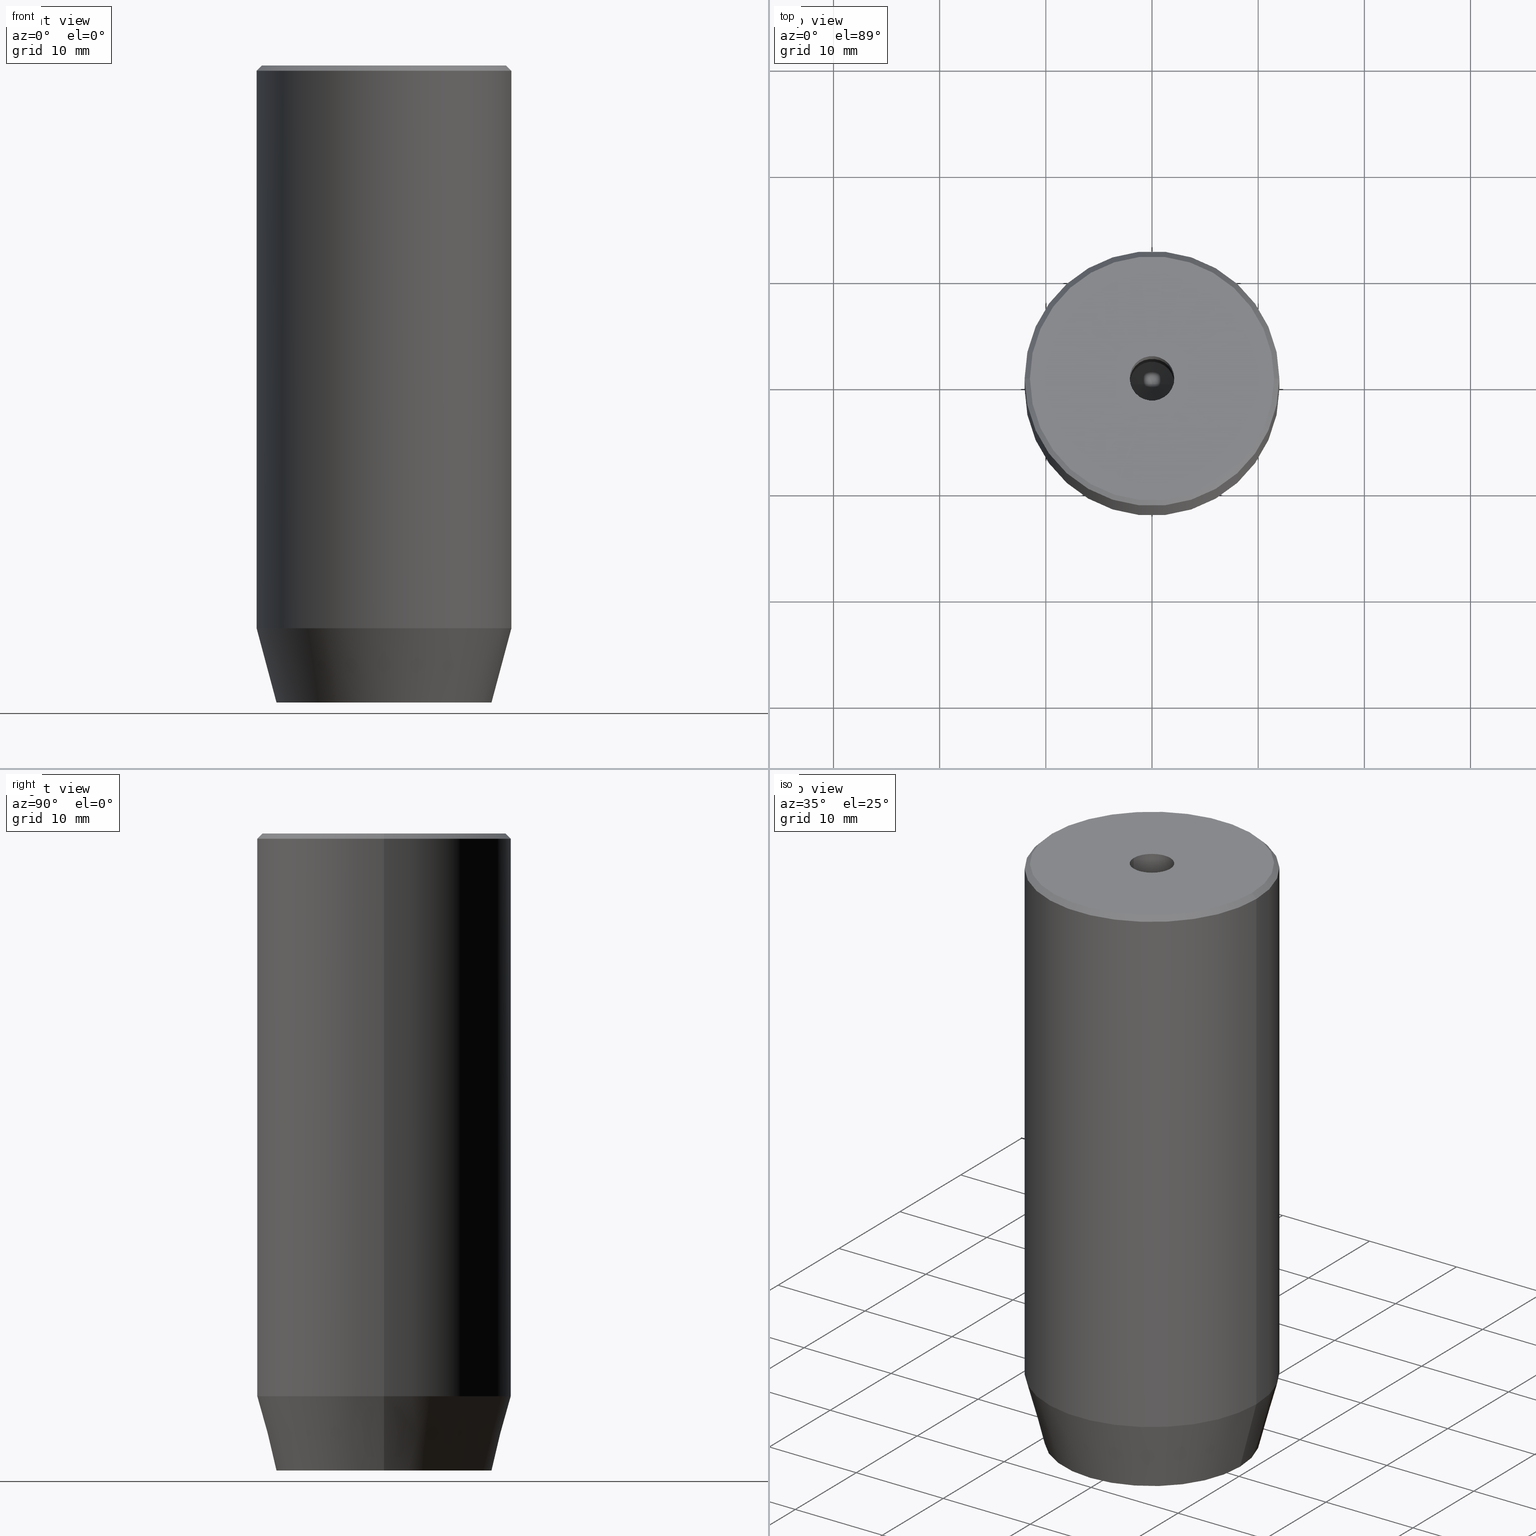
[diagram: canonical four-view strip — front | top / right | iso, engineering-drawing reading convention]
A machine part, canonical four-view strip (front | top / right | iso — engineering-drawing reading convention). The complete STEP part file that produces these views, byte-faithful:
ISO-10303-21;
HEADER;
FILE_DESCRIPTION (( 'STEP AP203' ),
    '1' );
FILE_NAME ('09b5.STEP',
    '2024-01-02T17:17:13',
    ( '' ),
    ( '' ),
    'SwSTEP 2.0',
    'SolidWorks 2019',
    '' );
FILE_SCHEMA (( 'CONFIG_CONTROL_DESIGN' ));
ENDSEC;

DATA;
#1 = DIRECTION ( 'NONE',  ( -0.8660254037844384856, -0.5000000000000002220, 0.000000000000000000 ) ) ;
#2 = CARTESIAN_POINT ( 'NONE',  ( 4.000000000000000000, -2.309401076758502480, -60.00000000000000000 ) ) ;
#3 = EDGE_CURVE ( 'NONE', #538, #533, #529, .T. ) ;
#4 = LINE ( 'NONE', #508, #546 ) ;
#5 = ADVANCED_FACE ( 'NONE', ( #492 ), #170, .F. ) ;
#6 = CONICAL_SURFACE ( 'NONE', #67, 11.49999999999998757, 0.7853981633974482790 ) ;
#7 = CARTESIAN_POINT ( 'NONE',  ( 4.000000000000000000, 2.309401076758503368, -57.20000000000000284 ) ) ;
#8 = CARTESIAN_POINT ( 'NONE',  ( 2.000000000000000444, 3.464101615137754386, -60.00000000000000000 ) ) ;
#9 = PERSON_AND_ORGANIZATION_ROLE ( 'creator' ) ;
#10 = ORIENTED_EDGE ( 'NONE', *, *, #476, .T. ) ;
#11 = CARTESIAN_POINT ( 'NONE',  ( -2.000000000000000888, -3.464101615137754386, -57.20000000000000284 ) ) ;
#12 = UNCERTAINTY_MEASURE_WITH_UNIT (LENGTH_MEASURE( 1.000000000000000082E-05 ), #350, 'distance_accuracy_value', 'NONE');
#13 = AXIS2_PLACEMENT_3D ( 'NONE', #244, #20, #436 ) ;
#14 = VECTOR ( 'NONE', #434, 1000.000000000000000 ) ;
#15 = DIRECTION ( 'NONE',  ( 1.000000000000000000, 0.000000000000000000, 0.000000000000000000 ) ) ;
#16 = CC_DESIGN_APPROVAL ( #28, ( #47 ) ) ;
#17 = EDGE_CURVE ( 'NONE', #249, #156, #411, .T. ) ;
#18 = CARTESIAN_POINT ( 'NONE',  ( 0.000000000000000000, 0.000000000000000000, -30.00000000000000000 ) ) ;
#19 = EDGE_LOOP ( 'NONE', ( #66, #328, #248, #404 ) ) ;
#20 = DIRECTION ( 'NONE',  ( -0.000000000000000000, -0.000000000000000000, 1.000000000000000000 ) ) ;
#21 = EDGE_CURVE ( 'NONE', #36, #265, #581, .T. ) ;
#22 = CIRCLE ( 'NONE', #505, 2.099999999999998757 ) ;
#23 = FACE_OUTER_BOUND ( 'NONE', #19, .T. ) ;
#24 = VECTOR ( 'NONE', #527, 1000.000000000000000 ) ;
#25 = ORIENTED_EDGE ( 'NONE', *, *, #510, .T. ) ;
#26 = CARTESIAN_POINT ( 'NONE',  ( 4.336808689942017736E-16, -4.618802153517006737, -60.00000000000000000 ) ) ;
#27 = CARTESIAN_POINT ( 'NONE',  ( 0.000000000000000000, 0.000000000000000000, -30.00000000000000000 ) ) ;
#28 = APPROVAL ( #293, 'NEUR�EN�' ) ;
#29 = VECTOR ( 'NONE', #416, 1000.000000000000000 ) ;
#30 = CARTESIAN_POINT ( 'NONE',  ( -12.00000000000000000, 1.469576158976823947E-15, -53.00000000000000000 ) ) ;
#31 = ORIENTED_EDGE ( 'NONE', *, *, #510, .F. ) ;
#32 = COORDINATED_UNIVERSAL_TIME_OFFSET ( 1, 0, .AHEAD. ) ;
#33 = DIRECTION ( 'NONE',  ( 1.000000000000000000, 0.000000000000000000, 0.000000000000000000 ) ) ;
#34 = COORDINATED_UNIVERSAL_TIME_OFFSET ( 1, 0, .AHEAD. ) ;
#35 = CIRCLE ( 'NONE', #228, 11.49999999999998757 ) ;
#36 = VERTEX_POINT ( 'NONE', #441 ) ;
#37 = EDGE_LOOP ( 'NONE', ( #125, #99, #431, #59 ) ) ;
#38 = CYLINDRICAL_SURFACE ( 'NONE', #211, 12.00000000000000000 ) ;
#39 = EDGE_LOOP ( 'NONE', ( #75, #400, #60, #289, #473, #61 ) ) ;
#40 = EDGE_LOOP ( 'NONE', ( #432, #571 ) ) ;
#41 = ORIENTED_EDGE ( 'NONE', *, *, #167, .T. ) ;
#42 = APPROVAL_ROLE ( '' ) ;
#43 = CARTESIAN_POINT ( 'NONE',  ( 12.00000000000000000, 0.000000000000000000, 0.000000000000000000 ) ) ;
#44 = CIRCLE ( 'NONE', #385, 2.099999999999998757 ) ;
#45 = ORIENTED_EDGE ( 'NONE', *, *, #168, .T. ) ;
#46 = CARTESIAN_POINT ( 'NONE',  ( 2.000000000000000888, -3.464101615137754386, -57.20000000000000284 ) ) ;
#47 = PRODUCT_DEFINITION ( 'NEZN�M�', '', #464, #302 ) ;
#48 = EDGE_CURVE ( 'NONE', #56, #389, #281, .T. ) ;
#49 = DIRECTION ( 'NONE',  ( 0.8660254037844385966, -0.5000000000000001110, 0.000000000000000000 ) ) ;
#50 = DIRECTION ( 'NONE',  ( 1.000000000000000000, 0.000000000000000000, 0.000000000000000000 ) ) ;
#51 = FACE_OUTER_BOUND ( 'NONE', #232, .T. ) ;
#52 = FACE_OUTER_BOUND ( 'NONE', #376, .T. ) ;
#53 = CONICAL_SURFACE ( 'NONE', #396, 2.099999999999994760, 1.029744258676652535 ) ;
#54 = EDGE_CURVE ( 'NONE', #533, #262, #467, .T. ) ;
#55 = DIRECTION ( 'NONE',  ( -0.000000000000000000, -0.000000000000000000, 1.000000000000000000 ) ) ;
#56 = VERTEX_POINT ( 'NONE', #271 ) ;
#57 = AXIS2_PLACEMENT_3D ( 'NONE', #563, #107, #472 ) ;
#58 = DIRECTION ( 'NONE',  ( 1.000000000000000000, 0.000000000000000000, 0.000000000000000000 ) ) ;
#59 = ORIENTED_EDGE ( 'NONE', *, *, #17, .T. ) ;
#60 = ORIENTED_EDGE ( 'NONE', *, *, #210, .F. ) ;
#61 = ORIENTED_EDGE ( 'NONE', *, *, #130, .F. ) ;
#62 = CYLINDRICAL_SURFACE ( 'NONE', #13, 2.099999999999996980 ) ;
#63 = EDGE_LOOP ( 'NONE', ( #526, #427, #146, #71 ) ) ;
#64 = DIRECTION ( 'NONE',  ( 0.5000000000000001110, 0.8660254037844385966, -0.000000000000000000 ) ) ;
#65 = COORDINATED_UNIVERSAL_TIME_OFFSET ( 1, 0, .AHEAD. ) ;
#66 = ORIENTED_EDGE ( 'NONE', *, *, #410, .F. ) ;
#67 = AXIS2_PLACEMENT_3D ( 'NONE', #158, #344, #291 ) ;
#68 = CARTESIAN_POINT ( 'NONE',  ( 0.000000000000000000, 0.000000000000000000, 0.000000000000000000 ) ) ;
#69 = ORIENTED_EDGE ( 'NONE', *, *, #236, .F. ) ;
#70 = DIRECTION ( 'NONE',  ( 1.000000000000000000, 0.000000000000000000, 0.000000000000000000 ) ) ;
#71 = ORIENTED_EDGE ( 'NONE', *, *, #562, .T. ) ;
#72 = ADVANCED_FACE ( 'NONE', ( #584 ), #407, .F. ) ;
#73 = CARTESIAN_POINT ( 'NONE',  ( -4.000000000000000000, -2.309401076758503368, -57.20000000000000284 ) ) ;
#74 = PERSON_AND_ORGANIZATION_ROLE ( 'creator' ) ;
#75 = ORIENTED_EDGE ( 'NONE', *, *, #429, .F. ) ;
#76 = CARTESIAN_POINT ( 'NONE',  ( -4.000000000000000000, 0.000000000000000000, -57.20000000000000284 ) ) ;
#77 = AXIS2_PLACEMENT_3D ( 'NONE', #386, #203, #58 ) ;
#78 = CARTESIAN_POINT ( 'NONE',  ( -2.000000000000000000, 3.464101615137754830, -57.20000000000000284 ) ) ;
#79 = AXIS2_PLACEMENT_3D ( 'NONE', #446, #484, #355 ) ;
#80 = APPROVAL_DATE_TIME ( #126, #373 ) ;
#81 = SECURITY_CLASSIFICATION ( '', '', #164 ) ;
#82 = CC_DESIGN_DATE_AND_TIME_ASSIGNMENT ( #519, #406, ( #81 ) ) ;
#83 = FACE_OUTER_BOUND ( 'NONE', #397, .T. ) ;
#84 = ORIENTED_EDGE ( 'NONE', *, *, #516, .T. ) ;
#85 = ORIENTED_EDGE ( 'NONE', *, *, #403, .F. ) ;
#86 = CARTESIAN_POINT ( 'NONE',  ( 0.000000000000000000, 10.12435565298213724, -60.00000000000000000 ) ) ;
#87 = CARTESIAN_POINT ( 'NONE',  ( -2.099999999999994760, 2.571758278209435054E-16, -30.00000000000000000 ) ) ;
#88 = AXIS2_PLACEMENT_3D ( 'NONE', #212, #535, #348 ) ;
#89 = EDGE_CURVE ( 'NONE', #520, #265, #453, .T. ) ;
#90 = ORIENTED_EDGE ( 'NONE', *, *, #48, .T. ) ;
#91 = ADVANCED_FACE ( 'NONE', ( #282 ), #53, .F. ) ;
#92 = DATE_TIME_ROLE ( 'creation_date' ) ;
#93 = DIRECTION ( 'NONE',  ( 0.000000000000000000, 1.000000000000000000, 0.000000000000000000 ) ) ;
#94 = CARTESIAN_POINT ( 'NONE',  ( 4.000000000000000000, 2.309401076758503368, -60.00000000000000000 ) ) ;
#95 = AXIS2_PLACEMENT_3D ( 'NONE', #27, #268, #317 ) ;
#96 = VECTOR ( 'NONE', #278, 1000.000000000000000 ) ;
#97 = LINE ( 'NONE', #187, #144 ) ;
#98 = VECTOR ( 'NONE', #362, 1000.000000000000114 ) ;
#99 = ORIENTED_EDGE ( 'NONE', *, *, #129, .F. ) ;
#100 = CC_DESIGN_PERSON_AND_ORGANIZATION_ASSIGNMENT ( #197, #108, ( #464 ) ) ;
#101 = CARTESIAN_POINT ( 'NONE',  ( 2.000000000000000444, 3.464101615137754386, -57.20000000000000284 ) ) ;
#102 = ORIENTED_EDGE ( 'NONE', *, *, #564, .F. ) ;
#103 = APPROVAL_PERSON_ORGANIZATION ( #323, #408, #227 ) ;
#104 = CARTESIAN_POINT ( 'NONE',  ( 2.000000000000000444, 3.464101615137754386, -57.20000000000000284 ) ) ;
#105 = FACE_OUTER_BOUND ( 'NONE', #365, .T. ) ;
#106 = ORIENTED_EDGE ( 'NONE', *, *, #375, .T. ) ;
#107 = DIRECTION ( 'NONE',  ( -0.000000000000000000, -0.000000000000000000, 1.000000000000000000 ) ) ;
#108 = PERSON_AND_ORGANIZATION_ROLE ( 'design_supplier' ) ;
#109 = PLANE ( 'NONE',  #321 ) ;
#110 = VERTEX_POINT ( 'NONE', #136 ) ;
#111 = AXIS2_PLACEMENT_3D ( 'NONE', #357, #489, #224 ) ;
#112 = DIRECTION ( 'NONE',  ( -0.2588190451025213501, 3.169619151431772337E-17, 0.9659258262890680902 ) ) ;
#113 = ORIENTED_EDGE ( 'NONE', *, *, #507, .F. ) ;
#114 = CYLINDRICAL_SURFACE ( 'NONE', #79, 2.099999999999996980 ) ;
#115 = AXIS2_PLACEMENT_3D ( 'NONE', #231, #415, #368 ) ;
#116 = DIRECTION ( 'NONE',  ( 1.000000000000000000, 0.000000000000000000, 0.000000000000000000 ) ) ;
#117 = DIRECTION ( 'NONE',  ( -0.000000000000000000, -0.000000000000000000, 1.000000000000000000 ) ) ;
#118 = DIRECTION ( 'NONE',  ( 1.000000000000000000, 0.000000000000000000, 0.000000000000000000 ) ) ;
#119 = DATE_AND_TIME ( #305, #204 ) ;
#120 = CC_DESIGN_APPROVAL ( #408, ( #81 ) ) ;
#121 = EDGE_LOOP ( 'NONE', ( #161, #106, #514, #230, #25, #517 ) ) ;
#122 = ADVANCED_FACE ( 'NONE', ( #190, #463 ), #370, .T. ) ;
#123 = CARTESIAN_POINT ( 'NONE',  ( 4.000000000000000000, 0.000000000000000000, -60.00000000000000000 ) ) ;
#124 = FACE_BOUND ( 'NONE', #466, .T. ) ;
#125 = ORIENTED_EDGE ( 'NONE', *, *, #130, .T. ) ;
#126 = DATE_AND_TIME ( #503, #192 ) ;
#127 = ORIENTED_EDGE ( 'NONE', *, *, #183, .F. ) ;
#128 =( NAMED_UNIT ( * ) PLANE_ANGLE_UNIT ( ) SI_UNIT ( $, .RADIAN. ) );
#129 = EDGE_CURVE ( 'NONE', #360, #141, #555, .T. ) ;
#130 = EDGE_CURVE ( 'NONE', #156, #141, #413, .T. ) ;
#131 = DIRECTION ( 'NONE',  ( -0.8660254037844384856, 0.5000000000000002220, 0.000000000000000000 ) ) ;
#132 = VECTOR ( 'NONE', #285, 1000.000000000000000 ) ;
#133 = CARTESIAN_POINT ( 'NONE',  ( -12.00000000000000000, 1.469576158976823947E-15, 0.000000000000000000 ) ) ;
#134 =( GEOMETRIC_REPRESENTATION_CONTEXT ( 3 ) GLOBAL_UNCERTAINTY_ASSIGNED_CONTEXT ( ( #12 ) ) GLOBAL_UNIT_ASSIGNED_CONTEXT ( ( #350, #128, #494 ) ) REPRESENTATION_CONTEXT ( 'NONE', 'WORKASPACE' ) );
#135 = PERSON_AND_ORGANIZATION ( #454, #299 ) ;
#136 = CARTESIAN_POINT ( 'NONE',  ( -7.656934449090954900E-15, 0.000000000000000000, -31.26180729995787289 ) ) ;
#137 = APPLICATION_CONTEXT ( 'configuration controlled 3d designs of mechanical parts and assemblies' ) ;
#138 = VECTOR ( 'NONE', #215, 1000.000000000000000 ) ;
#139 = EDGE_CURVE ( 'NONE', #209, #496, #4, .T. ) ;
#140 = DIRECTION ( 'NONE',  ( -0.000000000000000000, -0.000000000000000000, 1.000000000000000000 ) ) ;
#141 = VERTEX_POINT ( 'NONE', #94 ) ;
#142 = ADVANCED_BREP_SHAPE_REPRESENTATION ( '09b5', ( #290, #531 ), #134 ) ;
#143 = DIRECTION ( 'NONE',  ( 0.000000000000000000, 0.000000000000000000, -1.000000000000000000 ) ) ;
#144 = VECTOR ( 'NONE', #148, 1000.000000000000114 ) ;
#145 = DIRECTION ( 'NONE',  ( -1.000000000000000000, 0.000000000000000000, 0.000000000000000000 ) ) ;
#146 = ORIENTED_EDGE ( 'NONE', *, *, #383, .T. ) ;
#147 = APPROVAL_STATUS ( 'not_yet_approved' ) ;
#148 = DIRECTION ( 'NONE',  ( -0.8660254037844384856, 0.5000000000000002220, 0.000000000000000000 ) ) ;
#149 = CC_DESIGN_PERSON_AND_ORGANIZATION_ASSIGNMENT ( #486, #255, ( #81 ) ) ;
#150 = DIRECTION ( 'NONE',  ( 0.8660254037844384856, -0.5000000000000002220, 0.000000000000000000 ) ) ;
#151 = VECTOR ( 'NONE', #318, 1000.000000000000114 ) ;
#152 = VERTEX_POINT ( 'NONE', #379 ) ;
#153 = CARTESIAN_POINT ( 'NONE',  ( 4.000000000000000000, 2.309401076758503368, -57.20000000000000284 ) ) ;
#154 = DIRECTION ( 'NONE',  ( -0.5000000000000003331, -0.8660254037844385966, 0.000000000000000000 ) ) ;
#155 = ORIENTED_EDGE ( 'NONE', *, *, #403, .T. ) ;
#156 = VERTEX_POINT ( 'NONE', #330 ) ;
#157 = ORIENTED_EDGE ( 'NONE', *, *, #21, .T. ) ;
#158 = CARTESIAN_POINT ( 'NONE',  ( 0.000000000000000000, 0.000000000000000000, 0.000000000000000000 ) ) ;
#159 = VECTOR ( 'NONE', #525, 999.9999999999998863 ) ;
#160 = CARTESIAN_POINT ( 'NONE',  ( 2.099999999999994760, 0.000000000000000000, -30.00000000000000000 ) ) ;
#161 = ORIENTED_EDGE ( 'NONE', *, *, #183, .T. ) ;
#162 = EDGE_LOOP ( 'NONE', ( #585, #554, #448, #335 ) ) ;
#163 = DIRECTION ( 'NONE',  ( -0.000000000000000000, -0.000000000000000000, 1.000000000000000000 ) ) ;
#164 = SECURITY_CLASSIFICATION_LEVEL ( 'unclassified' ) ;
#165 = CALENDAR_DATE ( 2024, 2, 1 ) ;
#166 = LINE ( 'NONE', #123, #24 ) ;
#167 = EDGE_CURVE ( 'NONE', #433, #262, #327, .T. ) ;
#168 = EDGE_CURVE ( 'NONE', #110, #56, #229, .T. ) ;
#169 = CARTESIAN_POINT ( 'NONE',  ( 4.000000000000000000, 0.000000000000000000, -57.20000000000000284 ) ) ;
#170 = PLANE ( 'NONE',  #207 ) ;
#171 = LINE ( 'NONE', #530, #200 ) ;
#172 = AXIS2_PLACEMENT_3D ( 'NONE', #179, #539, #216 ) ;
#173 = CARTESIAN_POINT ( 'NONE',  ( 0.000000000000000000, 0.000000000000000000, 0.000000000000000000 ) ) ;
#174 = DIRECTION ( 'NONE',  ( -0.000000000000000000, -0.000000000000000000, -1.000000000000000000 ) ) ;
#175 = FACE_OUTER_BOUND ( 'NONE', #40, .T. ) ;
#176 = EDGE_LOOP ( 'NONE', ( #331, #69, #297, #347 ) ) ;
#177 = FACE_OUTER_BOUND ( 'NONE', #63, .T. ) ;
#178 = AXIS2_PLACEMENT_3D ( 'NONE', #482, #364, #324 ) ;
#179 = CARTESIAN_POINT ( 'NONE',  ( 0.000000000000000000, 0.000000000000000000, -0.5000000000000125455 ) ) ;
#180 = ORIENTED_EDGE ( 'NONE', *, *, #313, .T. ) ;
#181 = AXIS2_PLACEMENT_3D ( 'NONE', #173, #402, #33 ) ;
#182 = CARTESIAN_POINT ( 'NONE',  ( -4.000000000000000000, 0.000000000000000000, -60.00000000000000000 ) ) ;
#183 = EDGE_CURVE ( 'NONE', #36, #249, #542, .T. ) ;
#184 = DIRECTION ( 'NONE',  ( 0.8660254037844387076, 0.5000000000000001110, 0.000000000000000000 ) ) ;
#185 = EDGE_CURVE ( 'NONE', #343, #354, #245, .T. ) ;
#186 = ADVANCED_FACE ( 'NONE', ( #456 ), #193, .T. ) ;
#187 = CARTESIAN_POINT ( 'NONE',  ( -2.000000000000000888, -3.464101615137754386, -60.00000000000000000 ) ) ;
#188 = EDGE_LOOP ( 'NONE', ( #222, #352, #490, #205 ) ) ;
#189 = CARTESIAN_POINT ( 'NONE',  ( 0.000000000000000000, 0.000000000000000000, 0.000000000000000000 ) ) ;
#190 = FACE_BOUND ( 'NONE', #39, .T. ) ;
#191 = AXIS2_PLACEMENT_3D ( 'NONE', #550, #143, #145 ) ;
#192 = LOCAL_TIME ( 18, 17, 13.00000000000000000, #32 ) ;
#193 = CYLINDRICAL_SURFACE ( 'NONE', #115, 12.00000000000000000 ) ;
#194 = VECTOR ( 'NONE', #273, 1000.000000000000000 ) ;
#195 = DIRECTION ( 'NONE',  ( -0.8660254037844385966, 0.5000000000000001110, 0.000000000000000000 ) ) ;
#196 = AXIS2_PLACEMENT_3D ( 'NONE', #86, #234, #381 ) ;
#197 = PERSON_AND_ORGANIZATION ( #454, #299 ) ;
#198 = ORIENTED_EDGE ( 'NONE', *, *, #476, .F. ) ;
#199 = LINE ( 'NONE', #101, #353 ) ;
#200 = VECTOR ( 'NONE', #253, 1000.000000000000114 ) ;
#201 = ADVANCED_FACE ( 'NONE', ( #51 ), #425, .T. ) ;
#202 = ADVANCED_FACE ( 'NONE', ( #421 ), #506, .F. ) ;
#203 = DIRECTION ( 'NONE',  ( -0.000000000000000000, -0.000000000000000000, 1.000000000000000000 ) ) ;
#204 = LOCAL_TIME ( 18, 17, 13.00000000000000000, #217 ) ;
#205 = ORIENTED_EDGE ( 'NONE', *, *, #246, .T. ) ;
#206 = CARTESIAN_POINT ( 'NONE',  ( -4.000000000000000000, 2.309401076758503368, -60.00000000000000000 ) ) ;
#207 = AXIS2_PLACEMENT_3D ( 'NONE', #78, #226, #578 ) ;
#208 = DIRECTION ( 'NONE',  ( -0.000000000000000000, -0.000000000000000000, 1.000000000000000000 ) ) ;
#209 = VERTEX_POINT ( 'NONE', #2 ) ;
#210 = EDGE_CURVE ( 'NONE', #496, #520, #97, .T. ) ;
#211 = AXIS2_PLACEMENT_3D ( 'NONE', #569, #163, #70 ) ;
#212 = CARTESIAN_POINT ( 'NONE',  ( 0.000000000000000000, 0.000000000000000000, -53.00000000000000000 ) ) ;
#213 = ADVANCED_FACE ( 'NONE', ( #374 ), #345, .F. ) ;
#214 = LINE ( 'NONE', #528, #151 ) ;
#215 = DIRECTION ( 'NONE',  ( -0.000000000000000000, -0.000000000000000000, -1.000000000000000000 ) ) ;
#216 = DIRECTION ( 'NONE',  ( 1.000000000000000000, 0.000000000000000000, 0.000000000000000000 ) ) ;
#217 = COORDINATED_UNIVERSAL_TIME_OFFSET ( 1, 0, .AHEAD. ) ;
#218 = EDGE_LOOP ( 'NONE', ( #300, #497 ) ) ;
#219 = VECTOR ( 'NONE', #131, 1000.000000000000114 ) ;
#220 = CC_DESIGN_PERSON_AND_ORGANIZATION_ASSIGNMENT ( #478, #74, ( #47 ) ) ;
#221 = CARTESIAN_POINT ( 'NONE',  ( 2.099999999999998757, 0.000000000000000000, -1.990051048614449116E-16 ) ) ;
#222 = ORIENTED_EDGE ( 'NONE', *, *, #89, .T. ) ;
#223 = EDGE_LOOP ( 'NONE', ( #502, #84, #537 ) ) ;
#224 = DIRECTION ( 'NONE',  ( 1.000000000000000000, 0.000000000000000000, 0.000000000000000000 ) ) ;
#225 = DIRECTION ( 'NONE',  ( -0.000000000000000000, -0.000000000000000000, 1.000000000000000000 ) ) ;
#226 = DIRECTION ( 'NONE',  ( -0.5000000000000000000, 0.8660254037844387076, 0.000000000000000000 ) ) ;
#227 = APPROVAL_ROLE ( '' ) ;
#228 = AXIS2_PLACEMENT_3D ( 'NONE', #577, #225, #263 ) ;
#229 = LINE ( 'NONE', #87, #96 ) ;
#230 = ORIENTED_EDGE ( 'NONE', *, *, #470, .T. ) ;
#231 = CARTESIAN_POINT ( 'NONE',  ( 0.000000000000000000, 0.000000000000000000, 0.000000000000000000 ) ) ;
#232 = EDGE_LOOP ( 'NONE', ( #102, #283, #260, #198 ) ) ;
#233 = CLOSED_SHELL ( 'NONE', ( #325, #91, #394, #332, #186, #122, #459, #420, #438, #201, #5, #284, #303, #202, #72, #398, #443, #213, #587 ) ) ;
#234 = DIRECTION ( 'NONE',  ( 0.000000000000000000, 0.000000000000000000, -1.000000000000000000 ) ) ;
#235 = ORIENTED_EDGE ( 'NONE', *, *, #274, .T. ) ;
#236 = EDGE_CURVE ( 'NONE', #152, #496, #548, .T. ) ;
#237 = CARTESIAN_POINT ( 'NONE',  ( 0.000000000000000000, 0.000000000000000000, -30.00000000000000000 ) ) ;
#238 = CIRCLE ( 'NONE', #172, 12.00000000000000000 ) ;
#239 = DATE_AND_TIME ( #536, #301 ) ;
#240 = APPROVAL_PERSON_ORGANIZATION ( #500, #28, #469 ) ;
#241 = DIRECTION ( 'NONE',  ( 0.8660254037844384856, 0.5000000000000002220, 0.000000000000000000 ) ) ;
#242 = LOCAL_TIME ( 18, 17, 13.00000000000000000, #259 ) ;
#243 = VECTOR ( 'NONE', #174, 1000.000000000000000 ) ;
#244 = CARTESIAN_POINT ( 'NONE',  ( 0.000000000000000000, 0.000000000000000000, 0.000000000000000000 ) ) ;
#245 = CIRCLE ( 'NONE', #409, 10.12435565298213724 ) ;
#246 = EDGE_CURVE ( 'NONE', #540, #520, #457, .T. ) ;
#247 = DIRECTION ( 'NONE',  ( -0.000000000000000000, -0.000000000000000000, 1.000000000000000000 ) ) ;
#248 = ORIENTED_EDGE ( 'NONE', *, *, #314, .T. ) ;
#249 = VERTEX_POINT ( 'NONE', #474 ) ;
#250 = CARTESIAN_POINT ( 'NONE',  ( -10.12435565298213724, 1.354726066681111247E-15, -60.00000000000000000 ) ) ;
#251 = APPROVAL_PERSON_ORGANIZATION ( #135, #373, #42 ) ;
#252 = FACE_OUTER_BOUND ( 'NONE', #188, .T. ) ;
#253 = DIRECTION ( 'NONE',  ( 0.7071067811865474617, 8.659560562354932858E-17, -0.7071067811865474617 ) ) ;
#254 = CARTESIAN_POINT ( 'NONE',  ( 4.000000000000000000, -2.309401076758502480, -57.20000000000000284 ) ) ;
#255 = PERSON_AND_ORGANIZATION_ROLE ( 'classification_officer' ) ;
#256 = DIRECTION ( 'NONE',  ( -0.000000000000000000, -0.000000000000000000, 1.000000000000000000 ) ) ;
#257 = CIRCLE ( 'NONE', #493, 2.099999999999994760 ) ;
#258 = LINE ( 'NONE', #351, #98 ) ;
#259 = COORDINATED_UNIVERSAL_TIME_OFFSET ( 1, 0, .AHEAD. ) ;
#260 = ORIENTED_EDGE ( 'NONE', *, *, #507, .T. ) ;
#261 = CARTESIAN_POINT ( 'NONE',  ( -4.000000000000000000, -2.309401076758503368, -60.00000000000000000 ) ) ;
#262 = VERTEX_POINT ( 'NONE', #288 ) ;
#263 = DIRECTION ( 'NONE',  ( 1.000000000000000000, 0.000000000000000000, 0.000000000000000000 ) ) ;
#264 = CARTESIAN_POINT ( 'NONE',  ( 0.000000000000000000, 0.000000000000000000, -53.00000000000000000 ) ) ;
#265 = VERTEX_POINT ( 'NONE', #206 ) ;
#266 = AXIS2_PLACEMENT_3D ( 'NONE', #264, #356, #118 ) ;
#267 = CARTESIAN_POINT ( 'NONE',  ( -2.000000000000000000, 3.464101615137754830, -60.00000000000000000 ) ) ;
#268 = DIRECTION ( 'NONE',  ( -0.000000000000000000, -0.000000000000000000, 1.000000000000000000 ) ) ;
#269 = ORIENTED_EDGE ( 'NONE', *, *, #516, .F. ) ;
#270 = LINE ( 'NONE', #495, #574 ) ;
#271 = CARTESIAN_POINT ( 'NONE',  ( -2.099999999999994760, 2.571758278209435054E-16, -30.00000000000000000 ) ) ;
#272 = APPLICATION_PROTOCOL_DEFINITION ( 'international standard', 'config_control_design', 1994, #315 ) ;
#273 = DIRECTION ( 'NONE',  ( -0.000000000000000000, -0.000000000000000000, -1.000000000000000000 ) ) ;
#274 = EDGE_CURVE ( 'NONE', #538, #433, #512, .T. ) ;
#275 = ORIENTED_EDGE ( 'NONE', *, *, #17, .F. ) ;
#276 = AXIS2_PLACEMENT_3D ( 'NONE', #336, #511, #334 ) ;
#277 = VECTOR ( 'NONE', #477, 1000.000000000000000 ) ;
#278 = DIRECTION ( 'NONE',  ( -0.8571673007021113344, 1.049727191138617463E-16, 0.5150380749100558209 ) ) ;
#279 = ORIENTED_EDGE ( 'NONE', *, *, #553, .F. ) ;
#280 = CARTESIAN_POINT ( 'NONE',  ( 4.336808689942017736E-16, -4.618802153517006737, -57.20000000000000284 ) ) ;
#281 = CIRCLE ( 'NONE', #95, 2.099999999999994760 ) ;
#282 = FACE_OUTER_BOUND ( 'NONE', #487, .T. ) ;
#283 = ORIENTED_EDGE ( 'NONE', *, *, #551, .F. ) ;
#284 = ADVANCED_FACE ( 'NONE', ( #252 ), #388, .F. ) ;
#285 = DIRECTION ( 'NONE',  ( -0.000000000000000000, -0.000000000000000000, -1.000000000000000000 ) ) ;
#286 = CIRCLE ( 'NONE', #88, 12.00000000000000000 ) ;
#287 = ORIENTED_EDGE ( 'NONE', *, *, #562, .F. ) ;
#288 = CARTESIAN_POINT ( 'NONE',  ( 12.00000000000000000, 0.000000000000000000, -0.5000000000000125455 ) ) ;
#289 = ORIENTED_EDGE ( 'NONE', *, *, #139, .F. ) ;
#290 = MANIFOLD_SOLID_BREP ( 'Vrt�k z�vitn�ku pro M5 z�vit1', #233 ) ;
#291 = DIRECTION ( 'NONE',  ( -1.000000000000000000, 0.000000000000000000, 0.000000000000000000 ) ) ;
#292 = EDGE_CURVE ( 'NONE', #541, #209, #560, .T. ) ;
#293 = APPROVAL_STATUS ( 'not_yet_approved' ) ;
#294 = CARTESIAN_POINT ( 'NONE',  ( 0.000000000000000000, 0.000000000000000000, -53.00000000000000000 ) ) ;
#295 = ORIENTED_EDGE ( 'NONE', *, *, #410, .T. ) ;
#296 = VECTOR ( 'NONE', #573, 1000.000000000000000 ) ;
#297 = ORIENTED_EDGE ( 'NONE', *, *, #470, .F. ) ;
#298 = CARTESIAN_POINT ( 'NONE',  ( -4.000000000000000000, 0.000000000000000000, -57.20000000000000284 ) ) ;
#299 = ORGANIZATION ( 'NEUR�EN�', 'NEUR�EN�', '' ) ;
#300 = ORIENTED_EDGE ( 'NONE', *, *, #333, .F. ) ;
#301 = LOCAL_TIME ( 18, 17, 13.00000000000000000, #34 ) ;
#302 = DESIGN_CONTEXT ( 'detailed design', #315, 'design' ) ;
#303 = ADVANCED_FACE ( 'NONE', ( #52 ), #109, .F. ) ;
#304 = FACE_OUTER_BOUND ( 'NONE', #452, .T. ) ;
#305 = CALENDAR_DATE ( 2024, 2, 1 ) ;
#306 = ORIENTED_EDGE ( 'NONE', *, *, #333, .T. ) ;
#307 = DIRECTION ( 'NONE',  ( 0.000000000000000000, 0.000000000000000000, -1.000000000000000000 ) ) ;
#308 = CARTESIAN_POINT ( 'NONE',  ( -4.000000000000000000, 2.309401076758503368, -57.20000000000000284 ) ) ;
#309 = DIRECTION ( 'NONE',  ( 1.000000000000000000, 0.000000000000000000, 0.000000000000000000 ) ) ;
#310 = CIRCLE ( 'NONE', #57, 10.12435565298213724 ) ;
#311 = LINE ( 'NONE', #485, #296 ) ;
#312 = VERTEX_POINT ( 'NONE', #521 ) ;
#313 = EDGE_CURVE ( 'NONE', #56, #312, #337, .T. ) ;
#314 = EDGE_CURVE ( 'NONE', #354, #433, #465, .T. ) ;
#315 = APPLICATION_CONTEXT ( 'configuration controlled 3d designs of mechanical parts and assemblies' ) ;
#316 = CARTESIAN_POINT ( 'NONE',  ( 0.000000000000000000, 0.000000000000000000, -57.20000000000000284 ) ) ;
#317 = DIRECTION ( 'NONE',  ( 1.000000000000000000, 0.000000000000000000, 0.000000000000000000 ) ) ;
#318 = DIRECTION ( 'NONE',  ( -0.7071067811865474617, 0.000000000000000000, -0.7071067811865474617 ) ) ;
#319 = EDGE_LOOP ( 'NONE', ( #391, #275, #127, #157 ) ) ;
#320 = ORIENTED_EDGE ( 'NONE', *, *, #3, .T. ) ;
#321 = AXIS2_PLACEMENT_3D ( 'NONE', #11, #154, #150 ) ;
#322 = LINE ( 'NONE', #169, #401 ) ;
#323 = PERSON_AND_ORGANIZATION ( #454, #299 ) ;
#324 = DIRECTION ( 'NONE',  ( -0.000000000000000000, 0.000000000000000000, -1.000000000000000000 ) ) ;
#325 = ADVANCED_FACE ( 'NONE', ( #105 ), #62, .F. ) ;
#326 = CARTESIAN_POINT ( 'NONE',  ( -2.000000000000000000, 3.464101615137754830, -57.20000000000000284 ) ) ;
#327 = LINE ( 'NONE', #43, #29 ) ;
#328 = ORIENTED_EDGE ( 'NONE', *, *, #185, .T. ) ;
#329 = CONICAL_SURFACE ( 'NONE', #266, 12.00000000000000000, 0.2617993877991500740 ) ;
#330 = CARTESIAN_POINT ( 'NONE',  ( 0.000000000000000000, 4.618802153517005848, -60.00000000000000000 ) ) ;
#331 = ORIENTED_EDGE ( 'NONE', *, *, #139, .T. ) ;
#332 = ADVANCED_FACE ( 'NONE', ( #559 ), #462, .T. ) ;
#333 = EDGE_CURVE ( 'NONE', #354, #343, #310, .T. ) ;
#334 = DIRECTION ( 'NONE',  ( 1.000000000000000000, 0.000000000000000000, 0.000000000000000000 ) ) ;
#335 = ORIENTED_EDGE ( 'NONE', *, *, #129, .T. ) ;
#336 = CARTESIAN_POINT ( 'NONE',  ( 0.000000000000000000, 0.000000000000000000, -30.00000000000000000 ) ) ;
#337 = LINE ( 'NONE', #382, #471 ) ;
#338 = ORIENTED_EDGE ( 'NONE', *, *, #210, .T. ) ;
#339 = LINE ( 'NONE', #515, #449 ) ;
#340 = ORIENTED_EDGE ( 'NONE', *, *, #54, .F. ) ;
#341 = CARTESIAN_POINT ( 'NONE',  ( 12.00000000000000000, 0.000000000000000000, -53.00000000000000000 ) ) ;
#342 = CALENDAR_DATE ( 2024, 2, 1 ) ;
#343 = VERTEX_POINT ( 'NONE', #250 ) ;
#344 = DIRECTION ( 'NONE',  ( 0.000000000000000000, 0.000000000000000000, -1.000000000000000000 ) ) ;
#345 = CONICAL_SURFACE ( 'NONE', #276, 2.099999999999994760, 1.029744258676652535 ) ;
#346 = FACE_OUTER_BOUND ( 'NONE', #37, .T. ) ;
#347 = ORIENTED_EDGE ( 'NONE', *, *, #292, .T. ) ;
#348 = DIRECTION ( 'NONE',  ( 1.000000000000000000, 0.000000000000000000, 0.000000000000000000 ) ) ;
#349 = DATE_AND_TIME ( #165, #428 ) ;
#350 =( LENGTH_UNIT ( ) NAMED_UNIT ( * ) SI_UNIT ( .MILLI., .METRE. ) );
#351 = CARTESIAN_POINT ( 'NONE',  ( 2.000000000000000888, -3.464101615137754386, -57.20000000000000284 ) ) ;
#352 = ORIENTED_EDGE ( 'NONE', *, *, #21, .F. ) ;
#353 = VECTOR ( 'NONE', #384, 1000.000000000000000 ) ;
#354 = VERTEX_POINT ( 'NONE', #430 ) ;
#355 = DIRECTION ( 'NONE',  ( 1.000000000000000000, 0.000000000000000000, 0.000000000000000000 ) ) ;
#356 = DIRECTION ( 'NONE',  ( -0.000000000000000000, -0.000000000000000000, 1.000000000000000000 ) ) ;
#357 = CARTESIAN_POINT ( 'NONE',  ( 0.000000000000000000, 0.000000000000000000, -0.5000000000000125455 ) ) ;
#358 = EDGE_CURVE ( 'NONE', #389, #56, #257, .T. ) ;
#359 = LINE ( 'NONE', #491, #219 ) ;
#360 = VERTEX_POINT ( 'NONE', #153 ) ;
#361 = VERTEX_POINT ( 'NONE', #426 ) ;
#362 = DIRECTION ( 'NONE',  ( -0.8660254037844384856, -0.5000000000000002220, 0.000000000000000000 ) ) ;
#363 = APPROVAL_DATE_TIME ( #239, #408 ) ;
#364 = DIRECTION ( 'NONE',  ( 1.000000000000000000, 0.000000000000000000, -0.000000000000000000 ) ) ;
#365 = EDGE_LOOP ( 'NONE', ( #556, #180, #155, #568 ) ) ;
#366 = CC_DESIGN_PERSON_AND_ORGANIZATION_ASSIGNMENT ( #372, #543, ( #377 ) ) ;
#367 = AXIS2_PLACEMENT_3D ( 'NONE', #316, #307, #447 ) ;
#368 = DIRECTION ( 'NONE',  ( 1.000000000000000000, 0.000000000000000000, 0.000000000000000000 ) ) ;
#369 = SHAPE_DEFINITION_REPRESENTATION ( #417, #142 ) ;
#370 = PLANE ( 'NONE',  #196 ) ;
#371 = ORIENTED_EDGE ( 'NONE', *, *, #54, .T. ) ;
#372 = PERSON_AND_ORGANIZATION ( #454, #299 ) ;
#373 = APPROVAL ( #498, 'NEUR�EN�' ) ;
#374 = FACE_OUTER_BOUND ( 'NONE', #223, .T. ) ;
#375 = EDGE_CURVE ( 'NONE', #249, #360, #199, .T. ) ;
#376 = EDGE_LOOP ( 'NONE', ( #338, #561, #31, #552 ) ) ;
#377 = PRODUCT ( '09b5', '09b5', '', ( #458 ) ) ;
#378 = AXIS2_PLACEMENT_3D ( 'NONE', #104, #64, #195 ) ;
#379 = CARTESIAN_POINT ( 'NONE',  ( 4.336808689942017736E-16, -4.618802153517006737, -57.20000000000000284 ) ) ;
#380 = EDGE_LOOP ( 'NONE', ( #575, #320, #371, #424 ) ) ;
#381 = DIRECTION ( 'NONE',  ( -1.000000000000000000, 0.000000000000000000, -0.000000000000000000 ) ) ;
#382 = CARTESIAN_POINT ( 'NONE',  ( -2.099999999999996980, 2.571758278209438013E-16, 0.000000000000000000 ) ) ;
#383 = EDGE_CURVE ( 'NONE', #389, #422, #339, .T. ) ;
#384 = DIRECTION ( 'NONE',  ( 0.8660254037844385966, -0.5000000000000001110, 0.000000000000000000 ) ) ;
#385 = AXIS2_PLACEMENT_3D ( 'NONE', #479, #256, #309 ) ;
#386 = CARTESIAN_POINT ( 'NONE',  ( 0.000000000000000000, 0.000000000000000000, -53.00000000000000000 ) ) ;
#387 = VECTOR ( 'NONE', #117, 1000.000000000000000 ) ;
#388 = PLANE ( 'NONE',  #558 ) ;
#389 = VERTEX_POINT ( 'NONE', #160 ) ;
#390 = DIRECTION ( 'NONE',  ( 0.000000000000000000, 0.000000000000000000, 1.000000000000000000 ) ) ;
#391 = ORIENTED_EDGE ( 'NONE', *, *, #429, .T. ) ;
#392 = VECTOR ( 'NONE', #395, 1000.000000000000000 ) ;
#393 = PLANE ( 'NONE',  #367 ) ;
#394 = ADVANCED_FACE ( 'NONE', ( #304 ), #6, .T. ) ;
#395 = DIRECTION ( 'NONE',  ( 0.000000000000000000, 1.000000000000000000, 0.000000000000000000 ) ) ;
#396 = AXIS2_PLACEMENT_3D ( 'NONE', #237, #455, #50 ) ;
#397 = EDGE_LOOP ( 'NONE', ( #567, #235, #41, #10 ) ) ;
#398 = ADVANCED_FACE ( 'NONE', ( #346 ), #523, .F. ) ;
#399 = CARTESIAN_POINT ( 'NONE',  ( 4.000000000000000000, -2.309401076758502480, -57.20000000000000284 ) ) ;
#400 = ORIENTED_EDGE ( 'NONE', *, *, #89, .F. ) ;
#401 = VECTOR ( 'NONE', #440, 1000.000000000000000 ) ;
#402 = DIRECTION ( 'NONE',  ( -0.000000000000000000, -0.000000000000000000, 1.000000000000000000 ) ) ;
#403 = EDGE_CURVE ( 'NONE', #312, #422, #22, .T. ) ;
#404 = ORIENTED_EDGE ( 'NONE', *, *, #274, .F. ) ;
#405 = LINE ( 'NONE', #267, #159 ) ;
#406 = DATE_TIME_ROLE ( 'classification_date' ) ;
#407 = PLANE ( 'NONE',  #178 ) ;
#408 = APPROVAL ( #147, 'NEUR�EN�' ) ;
#409 = AXIS2_PLACEMENT_3D ( 'NONE', #545, #140, #501 ) ;
#410 = EDGE_CURVE ( 'NONE', #343, #538, #270, .T. ) ;
#411 = LINE ( 'NONE', #445, #243 ) ;
#412 = AXIS2_PLACEMENT_3D ( 'NONE', #46, #499, #241 ) ;
#413 = LINE ( 'NONE', #8, #524 ) ;
#414 = ORIENTED_EDGE ( 'NONE', *, *, #314, .F. ) ;
#415 = DIRECTION ( 'NONE',  ( -0.000000000000000000, -0.000000000000000000, 1.000000000000000000 ) ) ;
#416 = DIRECTION ( 'NONE',  ( -0.000000000000000000, -0.000000000000000000, 1.000000000000000000 ) ) ;
#417 = PRODUCT_DEFINITION_SHAPE ( 'NONE', 'NONE',  #47 ) ;
#418 = AXIS2_PLACEMENT_3D ( 'NONE', #68, #570, #116 ) ;
#419 = CARTESIAN_POINT ( 'NONE',  ( -4.000000000000000000, -2.309401076758503368, -57.20000000000000284 ) ) ;
#420 = ADVANCED_FACE ( 'NONE', ( #83 ), #38, .T. ) ;
#421 = FACE_OUTER_BOUND ( 'NONE', #176, .T. ) ;
#422 = VERTEX_POINT ( 'NONE', #221 ) ;
#423 = DIRECTION ( 'NONE',  ( 1.000000000000000000, 0.000000000000000000, 0.000000000000000000 ) ) ;
#424 = ORIENTED_EDGE ( 'NONE', *, *, #167, .F. ) ;
#425 = CONICAL_SURFACE ( 'NONE', #191, 11.49999999999998757, 0.7853981633974482790 ) ;
#426 = CARTESIAN_POINT ( 'NONE',  ( 11.49999999999998757, 1.438959988998139174E-15, 0.000000000000000000 ) ) ;
#427 = ORIENTED_EDGE ( 'NONE', *, *, #358, .F. ) ;
#428 = LOCAL_TIME ( 18, 17, 13.00000000000000000, #65 ) ;
#429 = EDGE_CURVE ( 'NONE', #265, #156, #405, .T. ) ;
#430 = CARTESIAN_POINT ( 'NONE',  ( 10.12435565298213724, 0.000000000000000000, -60.00000000000000000 ) ) ;
#431 = ORIENTED_EDGE ( 'NONE', *, *, #375, .F. ) ;
#432 = ORIENTED_EDGE ( 'NONE', *, *, #551, .T. ) ;
#433 = VERTEX_POINT ( 'NONE', #451 ) ;
#434 = DIRECTION ( 'NONE',  ( -0.000000000000000000, -0.000000000000000000, -1.000000000000000000 ) ) ;
#435 = EDGE_CURVE ( 'NONE', #540, #36, #532, .T. ) ;
#436 = DIRECTION ( 'NONE',  ( 1.000000000000000000, 0.000000000000000000, 0.000000000000000000 ) ) ;
#437 = EDGE_LOOP ( 'NONE', ( #306, #295, #547, #414 ) ) ;
#438 = ADVANCED_FACE ( 'NONE', ( #23 ), #329, .T. ) ;
#439 = CIRCLE ( 'NONE', #181, 11.49999999999998757 ) ;
#440 = DIRECTION ( 'NONE',  ( 0.000000000000000000, -1.000000000000000000, 0.000000000000000000 ) ) ;
#441 = CARTESIAN_POINT ( 'NONE',  ( -4.000000000000000000, 2.309401076758503368, -57.20000000000000284 ) ) ;
#442 = EDGE_CURVE ( 'NONE', #433, #538, #286, .T. ) ;
#443 = ADVANCED_FACE ( 'NONE', ( #488 ), #393, .T. ) ;
#444 = CARTESIAN_POINT ( 'NONE',  ( -12.00000000000000000, 1.469576158976823947E-15, -0.5000000000000125455 ) ) ;
#445 = CARTESIAN_POINT ( 'NONE',  ( 0.000000000000000000, 4.618802153517006737, -57.20000000000000284 ) ) ;
#446 = CARTESIAN_POINT ( 'NONE',  ( 0.000000000000000000, 0.000000000000000000, 0.000000000000000000 ) ) ;
#447 = DIRECTION ( 'NONE',  ( -1.000000000000000000, 0.000000000000000000, -0.000000000000000000 ) ) ;
#448 = ORIENTED_EDGE ( 'NONE', *, *, #481, .F. ) ;
#449 = VECTOR ( 'NONE', #208, 1000.000000000000000 ) ;
#450 = PRODUCT_RELATED_PRODUCT_CATEGORY ( 'detail', '', ( #377 ) ) ;
#451 = CARTESIAN_POINT ( 'NONE',  ( 12.00000000000000000, 0.000000000000000000, -53.00000000000000000 ) ) ;
#452 = EDGE_LOOP ( 'NONE', ( #279, #461, #340, #113 ) ) ;
#453 = LINE ( 'NONE', #182, #580 ) ;
#454 = PERSON ( 'NEUR�EN�', 'NEUR�EN�', 'NEUR�EN�', ('NEUR�EN�'), ('NEUR�EN�'), ('NEUR�EN�') ) ;
#455 = DIRECTION ( 'NONE',  ( -0.000000000000000000, -0.000000000000000000, 1.000000000000000000 ) ) ;
#456 = FACE_OUTER_BOUND ( 'NONE', #380, .T. ) ;
#457 = LINE ( 'NONE', #419, #132 ) ;
#458 = MECHANICAL_CONTEXT ( 'NONE', #137, 'mechanical' ) ;
#459 = ADVANCED_FACE ( 'NONE', ( #124, #175 ), #579, .T. ) ;
#460 = DIRECTION ( 'NONE',  ( -0.000000000000000000, -0.000000000000000000, -1.000000000000000000 ) ) ;
#461 = ORIENTED_EDGE ( 'NONE', *, *, #564, .T. ) ;
#462 = CONICAL_SURFACE ( 'NONE', #483, 12.00000000000000000, 0.2617993877991500740 ) ;
#463 = FACE_OUTER_BOUND ( 'NONE', #218, .T. ) ;
#464 = PRODUCT_DEFINITION_FORMATION_WITH_SPECIFIED_SOURCE ( 'LIBOVOLN�', '', #377, .NOT_KNOWN. ) ;
#465 = LINE ( 'NONE', #341, #277 ) ;
#466 = EDGE_LOOP ( 'NONE', ( #287, #85 ) ) ;
#467 = CIRCLE ( 'NONE', #111, 12.00000000000000000 ) ;
#468 = CARTESIAN_POINT ( 'NONE',  ( 0.000000000000000000, 0.000000000000000000, -1.990051048614449116E-16 ) ) ;
#469 = APPROVAL_ROLE ( '' ) ;
#470 = EDGE_CURVE ( 'NONE', #541, #152, #258, .T. ) ;
#471 = VECTOR ( 'NONE', #247, 1000.000000000000000 ) ;
#472 = DIRECTION ( 'NONE',  ( 1.000000000000000000, 0.000000000000000000, 0.000000000000000000 ) ) ;
#473 = ORIENTED_EDGE ( 'NONE', *, *, #583, .F. ) ;
#474 = CARTESIAN_POINT ( 'NONE',  ( 0.000000000000000000, 4.618802153517006737, -57.20000000000000284 ) ) ;
#475 = VERTEX_POINT ( 'NONE', #480 ) ;
#476 = EDGE_CURVE ( 'NONE', #262, #533, #238, .T. ) ;
#477 = DIRECTION ( 'NONE',  ( 0.2588190451025213501, 0.000000000000000000, 0.9659258262890680902 ) ) ;
#478 = PERSON_AND_ORGANIZATION ( #454, #299 ) ;
#479 = CARTESIAN_POINT ( 'NONE',  ( 0.000000000000000000, 0.000000000000000000, -1.990051048614449116E-16 ) ) ;
#480 = CARTESIAN_POINT ( 'NONE',  ( -11.49999999999998757, 0.000000000000000000, 0.000000000000000000 ) ) ;
#481 = EDGE_CURVE ( 'NONE', #360, #541, #322, .T. ) ;
#482 = CARTESIAN_POINT ( 'NONE',  ( 4.000000000000000000, 0.000000000000000000, -57.20000000000000284 ) ) ;
#483 = AXIS2_PLACEMENT_3D ( 'NONE', #294, #513, #557 ) ;
#484 = DIRECTION ( 'NONE',  ( -0.000000000000000000, -0.000000000000000000, 1.000000000000000000 ) ) ;
#485 = CARTESIAN_POINT ( 'NONE',  ( 2.099999999999994760, 0.000000000000000000, -30.00000000000000000 ) ) ;
#486 = PERSON_AND_ORGANIZATION ( #454, #299 ) ;
#487 = EDGE_LOOP ( 'NONE', ( #269, #45, #90 ) ) ;
#488 = FACE_OUTER_BOUND ( 'NONE', #121, .T. ) ;
#489 = DIRECTION ( 'NONE',  ( 0.000000000000000000, 0.000000000000000000, -1.000000000000000000 ) ) ;
#490 = ORIENTED_EDGE ( 'NONE', *, *, #435, .F. ) ;
#491 = CARTESIAN_POINT ( 'NONE',  ( -2.000000000000000888, -3.464101615137754386, -57.20000000000000284 ) ) ;
#492 = FACE_OUTER_BOUND ( 'NONE', #319, .T. ) ;
#493 = AXIS2_PLACEMENT_3D ( 'NONE', #18, #566, #423 ) ;
#494 =( NAMED_UNIT ( * ) SI_UNIT ( $, .STERADIAN. ) SOLID_ANGLE_UNIT ( ) );
#495 = CARTESIAN_POINT ( 'NONE',  ( -12.00000000000000000, 1.469576158976823947E-15, -53.00000000000000000 ) ) ;
#496 = VERTEX_POINT ( 'NONE', #26 ) ;
#497 = ORIENTED_EDGE ( 'NONE', *, *, #185, .F. ) ;
#498 = APPROVAL_STATUS ( 'not_yet_approved' ) ;
#499 = DIRECTION ( 'NONE',  ( 0.5000000000000003331, -0.8660254037844385966, 0.000000000000000000 ) ) ;
#500 = PERSON_AND_ORGANIZATION ( #454, #299 ) ;
#501 = DIRECTION ( 'NONE',  ( 1.000000000000000000, 0.000000000000000000, 0.000000000000000000 ) ) ;
#502 = ORIENTED_EDGE ( 'NONE', *, *, #168, .F. ) ;
#503 = CALENDAR_DATE ( 2024, 2, 1 ) ;
#504 = DIRECTION ( 'NONE',  ( 0.000000000000000000, 0.000000000000000000, 1.000000000000000000 ) ) ;
#505 = AXIS2_PLACEMENT_3D ( 'NONE', #468, #55, #15 ) ;
#506 = PLANE ( 'NONE',  #412 ) ;
#507 = EDGE_CURVE ( 'NONE', #475, #533, #214, .T. ) ;
#508 = CARTESIAN_POINT ( 'NONE',  ( 2.000000000000000888, -3.464101615137754386, -60.00000000000000000 ) ) ;
#509 = VECTOR ( 'NONE', #184, 999.9999999999998863 ) ;
#510 = EDGE_CURVE ( 'NONE', #152, #540, #359, .T. ) ;
#511 = DIRECTION ( 'NONE',  ( -0.000000000000000000, -0.000000000000000000, 1.000000000000000000 ) ) ;
#512 = CIRCLE ( 'NONE', #77, 12.00000000000000000 ) ;
#513 = DIRECTION ( 'NONE',  ( -0.000000000000000000, -0.000000000000000000, 1.000000000000000000 ) ) ;
#514 = ORIENTED_EDGE ( 'NONE', *, *, #481, .T. ) ;
#515 = CARTESIAN_POINT ( 'NONE',  ( 2.099999999999996980, 0.000000000000000000, 0.000000000000000000 ) ) ;
#516 = EDGE_CURVE ( 'NONE', #110, #389, #311, .T. ) ;
#517 = ORIENTED_EDGE ( 'NONE', *, *, #435, .T. ) ;
#518 = DIRECTION ( 'NONE',  ( -1.000000000000000000, 0.000000000000000000, 0.000000000000000000 ) ) ;
#519 = DATE_AND_TIME ( #342, #242 ) ;
#520 = VERTEX_POINT ( 'NONE', #261 ) ;
#521 = CARTESIAN_POINT ( 'NONE',  ( -2.099999999999998757, 2.571758278209440478E-16, -1.990051048614449116E-16 ) ) ;
#522 = APPROVAL_DATE_TIME ( #119, #28 ) ;
#523 = PLANE ( 'NONE',  #378 ) ;
#524 = VECTOR ( 'NONE', #49, 1000.000000000000000 ) ;
#525 = DIRECTION ( 'NONE',  ( 0.8660254037844387076, 0.5000000000000001110, 0.000000000000000000 ) ) ;
#526 = ORIENTED_EDGE ( 'NONE', *, *, #313, .F. ) ;
#527 = DIRECTION ( 'NONE',  ( 0.000000000000000000, -1.000000000000000000, 0.000000000000000000 ) ) ;
#528 = CARTESIAN_POINT ( 'NONE',  ( -11.49999999999998757, 0.000000000000000000, 0.000000000000000000 ) ) ;
#529 = LINE ( 'NONE', #133, #387 ) ;
#530 = CARTESIAN_POINT ( 'NONE',  ( 11.49999999999998757, 1.408343819019454598E-15, 0.000000000000000000 ) ) ;
#531 = AXIS2_PLACEMENT_3D ( 'NONE', #189, #504, #549 ) ;
#532 = LINE ( 'NONE', #76, #392 ) ;
#533 = VERTEX_POINT ( 'NONE', #444 ) ;
#534 = CC_DESIGN_SECURITY_CLASSIFICATION ( #81, ( #464 ) ) ;
#535 = DIRECTION ( 'NONE',  ( -0.000000000000000000, -0.000000000000000000, 1.000000000000000000 ) ) ;
#536 = CALENDAR_DATE ( 2024, 2, 1 ) ;
#537 = ORIENTED_EDGE ( 'NONE', *, *, #358, .T. ) ;
#538 = VERTEX_POINT ( 'NONE', #30 ) ;
#539 = DIRECTION ( 'NONE',  ( 0.000000000000000000, 0.000000000000000000, -1.000000000000000000 ) ) ;
#540 = VERTEX_POINT ( 'NONE', #73 ) ;
#541 = VERTEX_POINT ( 'NONE', #399 ) ;
#542 = LINE ( 'NONE', #326, #509 ) ;
#543 = PERSON_AND_ORGANIZATION_ROLE ( 'design_owner' ) ;
#544 = CC_DESIGN_PERSON_AND_ORGANIZATION_ASSIGNMENT ( #582, #9, ( #464 ) ) ;
#545 = CARTESIAN_POINT ( 'NONE',  ( 0.000000000000000000, 0.000000000000000000, -60.00000000000000000 ) ) ;
#546 = VECTOR ( 'NONE', #1, 1000.000000000000114 ) ;
#547 = ORIENTED_EDGE ( 'NONE', *, *, #442, .F. ) ;
#548 = LINE ( 'NONE', #280, #565 ) ;
#549 = DIRECTION ( 'NONE',  ( 1.000000000000000000, 0.000000000000000000, 0.000000000000000000 ) ) ;
#550 = CARTESIAN_POINT ( 'NONE',  ( 0.000000000000000000, 0.000000000000000000, 0.000000000000000000 ) ) ;
#551 = EDGE_CURVE ( 'NONE', #475, #361, #439, .T. ) ;
#552 = ORIENTED_EDGE ( 'NONE', *, *, #236, .T. ) ;
#553 = EDGE_CURVE ( 'NONE', #361, #475, #35, .T. ) ;
#554 = ORIENTED_EDGE ( 'NONE', *, *, #292, .F. ) ;
#555 = LINE ( 'NONE', #7, #194 ) ;
#556 = ORIENTED_EDGE ( 'NONE', *, *, #48, .F. ) ;
#557 = DIRECTION ( 'NONE',  ( 1.000000000000000000, 0.000000000000000000, 0.000000000000000000 ) ) ;
#558 = AXIS2_PLACEMENT_3D ( 'NONE', #298, #518, #390 ) ;
#559 = FACE_OUTER_BOUND ( 'NONE', #437, .T. ) ;
#560 = LINE ( 'NONE', #254, #14 ) ;
#561 = ORIENTED_EDGE ( 'NONE', *, *, #246, .F. ) ;
#562 = EDGE_CURVE ( 'NONE', #422, #312, #44, .T. ) ;
#563 = CARTESIAN_POINT ( 'NONE',  ( 0.000000000000000000, 0.000000000000000000, -60.00000000000000000 ) ) ;
#564 = EDGE_CURVE ( 'NONE', #361, #262, #171, .T. ) ;
#565 = VECTOR ( 'NONE', #460, 1000.000000000000000 ) ;
#566 = DIRECTION ( 'NONE',  ( -0.000000000000000000, -0.000000000000000000, 1.000000000000000000 ) ) ;
#567 = ORIENTED_EDGE ( 'NONE', *, *, #3, .F. ) ;
#568 = ORIENTED_EDGE ( 'NONE', *, *, #383, .F. ) ;
#569 = CARTESIAN_POINT ( 'NONE',  ( 0.000000000000000000, 0.000000000000000000, 0.000000000000000000 ) ) ;
#570 = DIRECTION ( 'NONE',  ( 0.000000000000000000, -0.000000000000000000, 1.000000000000000000 ) ) ;
#571 = ORIENTED_EDGE ( 'NONE', *, *, #553, .T. ) ;
#572 = CC_DESIGN_DATE_AND_TIME_ASSIGNMENT ( #349, #92, ( #47 ) ) ;
#573 = DIRECTION ( 'NONE',  ( 0.8571673007021113344, 0.000000000000000000, 0.5150380749100558209 ) ) ;
#574 = VECTOR ( 'NONE', #112, 1000.000000000000000 ) ;
#575 = ORIENTED_EDGE ( 'NONE', *, *, #442, .T. ) ;
#576 = CC_DESIGN_APPROVAL ( #373, ( #464 ) ) ;
#577 = CARTESIAN_POINT ( 'NONE',  ( 0.000000000000000000, 0.000000000000000000, 0.000000000000000000 ) ) ;
#578 = DIRECTION ( 'NONE',  ( -0.8660254037844385966, -0.4999999999999999445, 0.000000000000000000 ) ) ;
#579 = PLANE ( 'NONE',  #418 ) ;
#580 = VECTOR ( 'NONE', #93, 1000.000000000000000 ) ;
#581 = LINE ( 'NONE', #308, #138 ) ;
#582 = PERSON_AND_ORGANIZATION ( #454, #299 ) ;
#583 = EDGE_CURVE ( 'NONE', #141, #209, #166, .T. ) ;
#584 = FACE_OUTER_BOUND ( 'NONE', #162, .T. ) ;
#585 = ORIENTED_EDGE ( 'NONE', *, *, #583, .T. ) ;
#586 = APPLICATION_PROTOCOL_DEFINITION ( 'international standard', 'config_control_design', 1994, #137 ) ;
#587 = ADVANCED_FACE ( 'NONE', ( #177 ), #114, .F. ) ;
ENDSEC;
END-ISO-10303-21;
